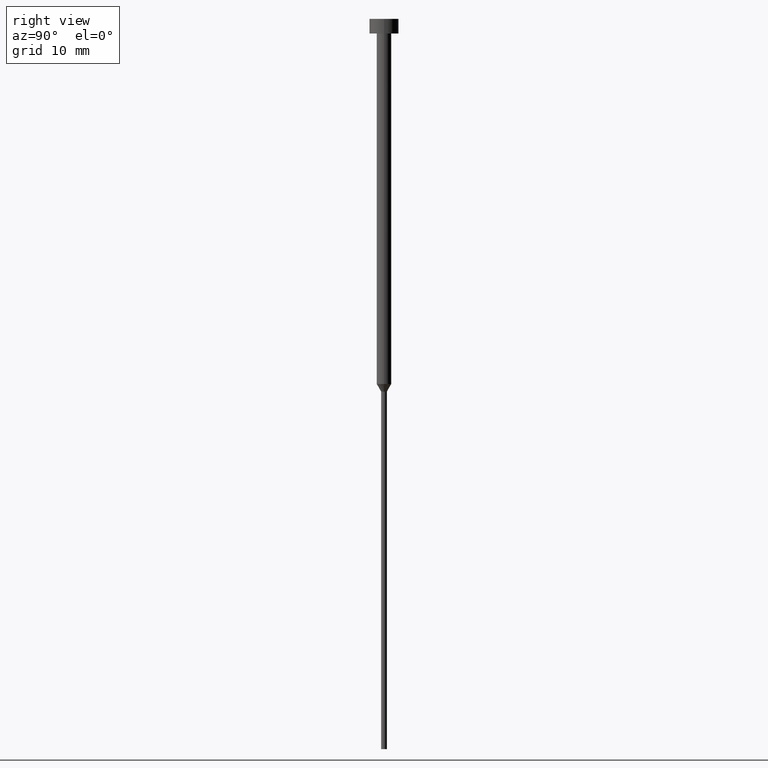
[diagram: clean part render]
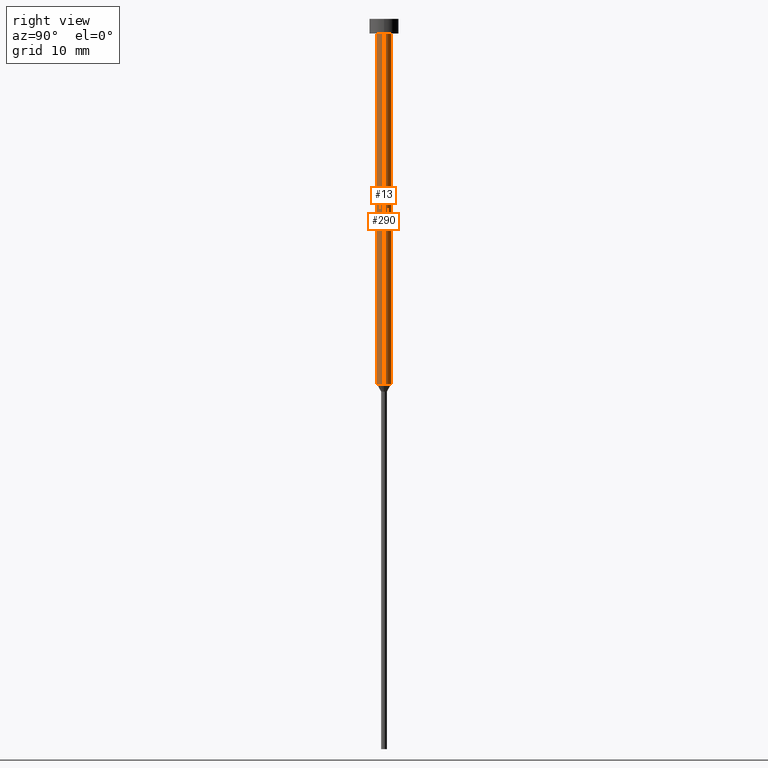
[diagram: same view with one multi-face feature highlighted, each face labeled with its STEP entity id]
A machine part, right view. The highlighted faces form ONE feature: a constant-radius fillet chain: 2 tangent blend faces with common blend radius 1 mm. The faces share edges in the B-rep.
Their STEP definitions:
[1] entity #290 (Cylinder):
#1 = EDGE_CURVE ( 'NONE', #350, #308, #109, .T. ) ;
#11 = CARTESIAN_POINT ( 'NONE',  ( 0.000000000000000000, 0.000000000000000000, 0.000000000000000000 ) ) ;
#52 = ORIENTED_EDGE ( 'NONE', *, *, #83, .T. ) ;
#58 = CARTESIAN_POINT ( 'NONE',  ( 1.000000000000003109, 0.000000000000000000, -50.00000000000000000 ) ) ;
#59 = CIRCLE ( 'NONE', #128, 1.000000000000003109 ) ;
#65 = EDGE_CURVE ( 'NONE', #124, #204, #192, .T. ) ;
#68 = DIRECTION ( 'NONE',  ( 1.000000000000000000, 0.000000000000000000, 0.000000000000000000 ) ) ;
#70 = CARTESIAN_POINT ( 'NONE',  ( 1.000000000000003553, 0.000000000000000000, -2.000000000000000444 ) ) ;
#79 = DIRECTION ( 'NONE',  ( 1.000000000000000000, 0.000000000000000000, 0.000000000000000000 ) ) ;
#83 = EDGE_CURVE ( 'NONE', #124, #350, #59, .T. ) ;
#88 = DIRECTION ( 'NONE',  ( 1.000000000000000000, 0.000000000000000000, 0.000000000000000000 ) ) ;
#92 = DIRECTION ( 'NONE',  ( -0.000000000000000000, -0.000000000000000000, 1.000000000000000000 ) ) ;
#109 = LINE ( 'NONE', #141, #291 ) ;
#116 = ORIENTED_EDGE ( 'NONE', *, *, #65, .F. ) ;
#123 = ORIENTED_EDGE ( 'NONE', *, *, #351, .F. ) ;
#124 = VERTEX_POINT ( 'NONE', #58 ) ;
#128 = AXIS2_PLACEMENT_3D ( 'NONE', #338, #307, #88 ) ;
#141 = CARTESIAN_POINT ( 'NONE',  ( -1.000000000000003331, 1.224646799147357151E-16, 0.000000000000000000 ) ) ;
#144 = CYLINDRICAL_SURFACE ( 'NONE', #166, 1.000000000000003331 ) ;
#158 = CARTESIAN_POINT ( 'NONE',  ( 1.000000000000003331, 0.000000000000000000, 0.000000000000000000 ) ) ;
#161 = VECTOR ( 'NONE', #272, 1000.000000000000000 ) ;
#163 = DIRECTION ( 'NONE',  ( -0.000000000000000000, -0.000000000000000000, 1.000000000000000000 ) ) ;
#166 = AXIS2_PLACEMENT_3D ( 'NONE', #11, #92, #68 ) ;
#192 = LINE ( 'NONE', #158, #161 ) ;
#204 = VERTEX_POINT ( 'NONE', #70 ) ;
#205 = AXIS2_PLACEMENT_3D ( 'NONE', #276, #245, #79 ) ;
#245 = DIRECTION ( 'NONE',  ( -0.000000000000000000, -0.000000000000000000, 1.000000000000000000 ) ) ;
#248 = CARTESIAN_POINT ( 'NONE',  ( -1.000000000000003109, 1.224646799147356905E-16, -50.00000000000000000 ) ) ;
#269 = ORIENTED_EDGE ( 'NONE', *, *, #1, .T. ) ;
#272 = DIRECTION ( 'NONE',  ( -0.000000000000000000, -0.000000000000000000, 1.000000000000000000 ) ) ;
#276 = CARTESIAN_POINT ( 'NONE',  ( 0.000000000000000000, 0.000000000000000000, -2.000000000000000444 ) ) ;
#289 = CIRCLE ( 'NONE', #205, 1.000000000000003553 ) ;
#290 = ADVANCED_FACE ( 'NONE', ( #347 ), #144, .T. ) ;
#291 = VECTOR ( 'NONE', #163, 1000.000000000000000 ) ;
#301 = CARTESIAN_POINT ( 'NONE',  ( -1.000000000000003553, 1.224646799147357398E-16, -2.000000000000000444 ) ) ;
#307 = DIRECTION ( 'NONE',  ( -0.000000000000000000, -0.000000000000000000, 1.000000000000000000 ) ) ;
#308 = VERTEX_POINT ( 'NONE', #301 ) ;
#323 = EDGE_LOOP ( 'NONE', ( #52, #269, #123, #116 ) ) ;
#338 = CARTESIAN_POINT ( 'NONE',  ( 0.000000000000000000, 0.000000000000000000, -50.00000000000000000 ) ) ;
#347 = FACE_OUTER_BOUND ( 'NONE', #323, .T. ) ;
#350 = VERTEX_POINT ( 'NONE', #248 ) ;
#351 = EDGE_CURVE ( 'NONE', #204, #308, #289, .T. ) ;
[2] entity #13 (Cylinder):
#1 = EDGE_CURVE ( 'NONE', #350, #308, #109, .T. ) ;
#8 = ORIENTED_EDGE ( 'NONE', *, *, #65, .T. ) ;
#13 = ADVANCED_FACE ( 'NONE', ( #190 ), #62, .T. ) ;
#19 = EDGE_CURVE ( 'NONE', #308, #204, #194, .T. ) ;
#37 = AXIS2_PLACEMENT_3D ( 'NONE', #312, #281, #60 ) ;
#40 = DIRECTION ( 'NONE',  ( -0.000000000000000000, -0.000000000000000000, 1.000000000000000000 ) ) ;
#49 = CIRCLE ( 'NONE', #148, 1.000000000000003109 ) ;
#58 = CARTESIAN_POINT ( 'NONE',  ( 1.000000000000003109, 0.000000000000000000, -50.00000000000000000 ) ) ;
#60 = DIRECTION ( 'NONE',  ( 1.000000000000000000, 0.000000000000000000, 0.000000000000000000 ) ) ;
#62 = CYLINDRICAL_SURFACE ( 'NONE', #319, 1.000000000000003331 ) ;
#65 = EDGE_CURVE ( 'NONE', #124, #204, #192, .T. ) ;
#70 = CARTESIAN_POINT ( 'NONE',  ( 1.000000000000003553, 0.000000000000000000, -2.000000000000000444 ) ) ;
#76 = ORIENTED_EDGE ( 'NONE', *, *, #172, .T. ) ;
#85 = DIRECTION ( 'NONE',  ( 1.000000000000000000, 0.000000000000000000, 0.000000000000000000 ) ) ;
#109 = LINE ( 'NONE', #141, #291 ) ;
#124 = VERTEX_POINT ( 'NONE', #58 ) ;
#141 = CARTESIAN_POINT ( 'NONE',  ( -1.000000000000003331, 1.224646799147357151E-16, 0.000000000000000000 ) ) ;
#143 = EDGE_LOOP ( 'NONE', ( #154, #76, #8, #310 ) ) ;
#148 = AXIS2_PLACEMENT_3D ( 'NONE', #288, #40, #343 ) ;
#154 = ORIENTED_EDGE ( 'NONE', *, *, #1, .F. ) ;
#158 = CARTESIAN_POINT ( 'NONE',  ( 1.000000000000003331, 0.000000000000000000, 0.000000000000000000 ) ) ;
#161 = VECTOR ( 'NONE', #272, 1000.000000000000000 ) ;
#163 = DIRECTION ( 'NONE',  ( -0.000000000000000000, -0.000000000000000000, 1.000000000000000000 ) ) ;
#172 = EDGE_CURVE ( 'NONE', #350, #124, #49, .T. ) ;
#190 = FACE_OUTER_BOUND ( 'NONE', #143, .T. ) ;
#192 = LINE ( 'NONE', #158, #161 ) ;
#194 = CIRCLE ( 'NONE', #37, 1.000000000000003553 ) ;
#197 = CARTESIAN_POINT ( 'NONE',  ( 0.000000000000000000, 0.000000000000000000, 0.000000000000000000 ) ) ;
#204 = VERTEX_POINT ( 'NONE', #70 ) ;
#248 = CARTESIAN_POINT ( 'NONE',  ( -1.000000000000003109, 1.224646799147356905E-16, -50.00000000000000000 ) ) ;
#272 = DIRECTION ( 'NONE',  ( -0.000000000000000000, -0.000000000000000000, 1.000000000000000000 ) ) ;
#281 = DIRECTION ( 'NONE',  ( -0.000000000000000000, -0.000000000000000000, 1.000000000000000000 ) ) ;
#288 = CARTESIAN_POINT ( 'NONE',  ( 0.000000000000000000, 0.000000000000000000, -50.00000000000000000 ) ) ;
#291 = VECTOR ( 'NONE', #163, 1000.000000000000000 ) ;
#301 = CARTESIAN_POINT ( 'NONE',  ( -1.000000000000003553, 1.224646799147357398E-16, -2.000000000000000444 ) ) ;
#308 = VERTEX_POINT ( 'NONE', #301 ) ;
#310 = ORIENTED_EDGE ( 'NONE', *, *, #19, .F. ) ;
#312 = CARTESIAN_POINT ( 'NONE',  ( 0.000000000000000000, 0.000000000000000000, -2.000000000000000444 ) ) ;
#319 = AXIS2_PLACEMENT_3D ( 'NONE', #197, #337, #85 ) ;
#337 = DIRECTION ( 'NONE',  ( -0.000000000000000000, -0.000000000000000000, 1.000000000000000000 ) ) ;
#343 = DIRECTION ( 'NONE',  ( 1.000000000000000000, 0.000000000000000000, 0.000000000000000000 ) ) ;
#350 = VERTEX_POINT ( 'NONE', #248 ) ;